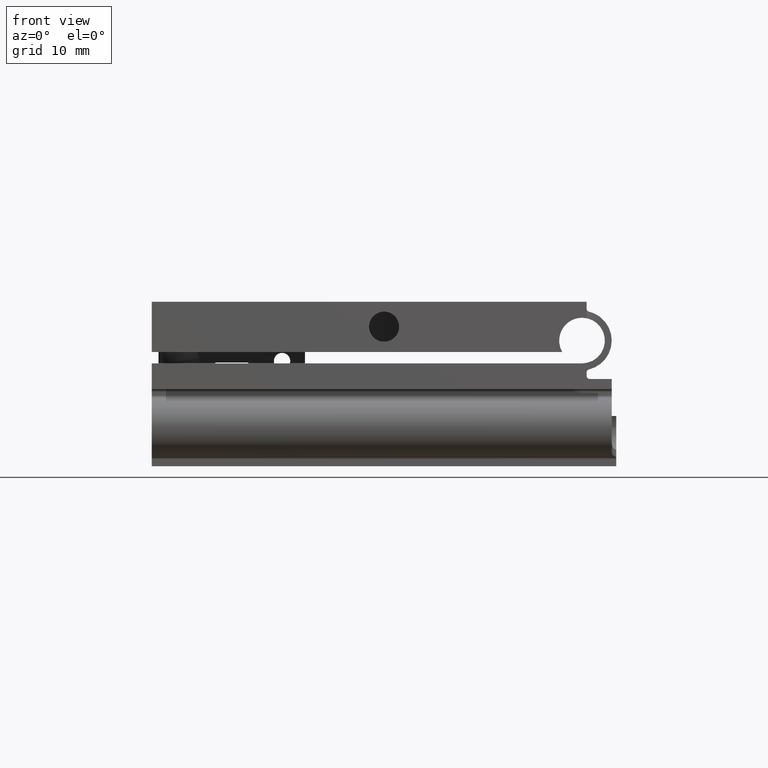
[diagram: clean part render]
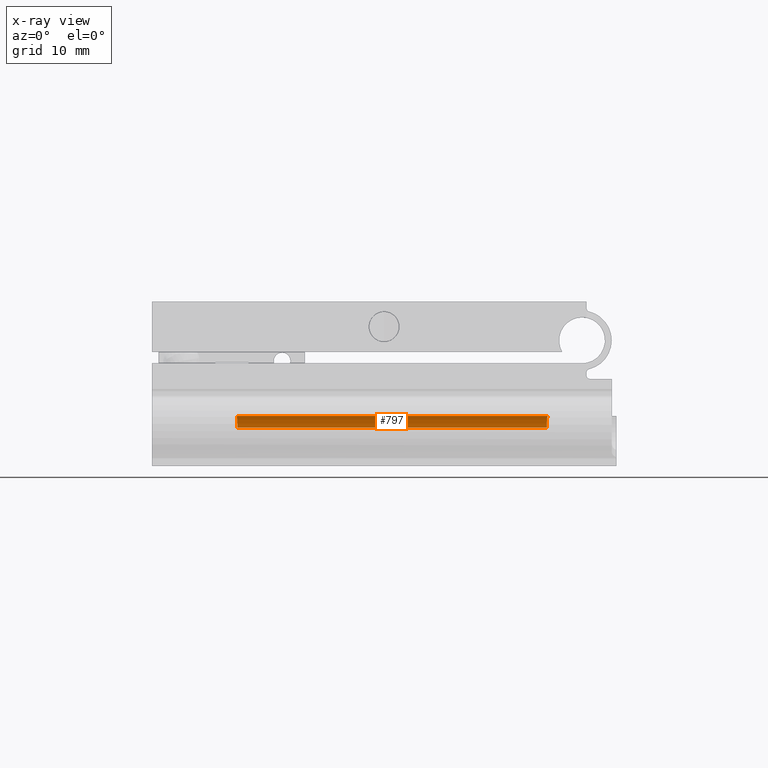
[diagram: x-ray — body ghosted, one internal face saturated and labeled with its STEP entity id]
A machine part, front view, then the same camera in x-ray: the body is ghosted and one INTERNAL B-rep face — a face not visible from any outside direction — is saturated and labeled: STEP entity #797.
In plain terms, the highlighted cylindrical surface (edge-blend (fillet) strip) has radius 2.5 mm, axis along (1, -0, 0).
Its self-contained STEP definition (entity closure, byte-faithful):
#267 = CARTESIAN_POINT ( 'NONE',  ( -16.05225204788961690, -19.17929865745773910, -4.310661376066158290 ) ) ;
#665 = CARTESIAN_POINT ( 'NONE',  ( 17.83786831304726661, -19.37651408174949097, -3.687793120702261618 ) ) ;
#682 = ORIENTED_EDGE ( 'NONE', *, *, #3242, .F. ) ;
#797 = ADVANCED_FACE ( 'NONE', ( #7647 ), #9318, .F. ) ;
#802 = VERTEX_POINT ( 'NONE', #4118 ) ;
#935 = CARTESIAN_POINT ( 'NONE',  ( -25.40000000000000213, -19.14999999999999503, -4.749999999999998224 ) ) ;
#1800 = EDGE_CURVE ( 'NONE', #10641, #802, #8908, .T. ) ;
#1941 = CARTESIAN_POINT ( 'NONE',  ( -16.05166712988701150, -19.14999999999999503, -4.530165283281665900 ) ) ;
#2614 = VECTOR ( 'NONE', #7169, 1000.000000000000000 ) ;
#2640 = EDGE_LOOP ( 'NONE', ( #6502, #5078, #682, #3213 ) ) ;
#2761 = CARTESIAN_POINT ( 'NONE',  ( -16.05927303029503506, -19.29241105560954139, -3.890257061786462689 ) ) ;
#2817 = CARTESIAN_POINT ( 'NONE',  ( -16.08169572833281435, -19.48493649053889598, -3.499999999999998224 ) ) ;
#3160 = CARTESIAN_POINT ( 'NONE',  ( 17.87810826046187884, -19.48493649053889598, -3.499999999999999556 ) ) ;
#3213 = ORIENTED_EDGE ( 'NONE', *, *, #4787, .T. ) ;
#3242 = EDGE_CURVE ( 'NONE', #4381, #8423, #5255, .T. ) ;
#3519 = CARTESIAN_POINT ( 'NONE',  ( -25.40000000000000213, -21.64999999999999147, -4.749999999999998224 ) ) ;
#3863 = CARTESIAN_POINT ( 'NONE',  ( -25.40000000000000213, -19.48493649053889598, -3.499999999999998224 ) ) ;
#4118 = CARTESIAN_POINT ( 'NONE',  ( -16.05166712988701860, -19.14999999999999503, -4.749999999999998224 ) ) ;
#4381 = VERTEX_POINT ( 'NONE', #10154 ) ;
#4393 = CARTESIAN_POINT ( 'NONE',  ( -16.06562591338839141, -19.37526507555749333, -3.689956462885763067 ) ) ;
#4433 = EDGE_CURVE ( 'NONE', #802, #8423, #9334, .T. ) ;
#4787 = EDGE_CURVE ( 'NONE', #4381, #10641, #8250, .T. ) ;
#5078 = ORIENTED_EDGE ( 'NONE', *, *, #4433, .T. ) ;
#5255 = B_SPLINE_CURVE_WITH_KNOTS ( 'NONE', 3,
 ( #3160, #665, #5710, #10693, #6575, #5765 ),
 .UNSPECIFIED., .F., .F.,
 ( 4, 2, 4 ),
 ( -0.001302205652526645637, -0.0006511028262633231437, -6.505213034913026604E-19 ),
 .UNSPECIFIED. ) ;
#5710 = CARTESIAN_POINT ( 'NONE',  ( 17.82241645588338841, -19.29261574950231406, -3.889168498510625405 ) ) ;
#5765 = CARTESIAN_POINT ( 'NONE',  ( 17.80400642056229898, -19.14999999999999858, -4.749999999999998224 ) ) ;
#5978 = VECTOR ( 'NONE', #10049, 1000.000000000000000 ) ;
#6041 = CARTESIAN_POINT ( 'NONE',  ( -16.08169572833281435, -19.48493649053889598, -3.499999999999998224 ) ) ;
#6072 = CARTESIAN_POINT ( 'NONE',  ( -16.05166712988701860, -19.14999999999999503, -4.749999999999998224 ) ) ;
#6166 = CARTESIAN_POINT ( 'NONE',  ( 17.80400642056229898, -19.14999999999999858, -4.749999999999998224 ) ) ;
#6502 = ORIENTED_EDGE ( 'NONE', *, *, #1800, .T. ) ;
#6575 = CARTESIAN_POINT ( 'NONE',  ( 17.80400642056229898, -19.14999999999999858, -4.529850744916507743 ) ) ;
#6669 = DIRECTION ( 'NONE',  ( 0.000000000000000000, 1.000000000000000000, 0.000000000000000000 ) ) ;
#6829 = DIRECTION ( 'NONE',  ( 1.000000000000000000, -5.551115123125782702E-17, 1.232595164407830946E-32 ) ) ;
#7169 = DIRECTION ( 'NONE',  ( -1.000000000000000000, -5.131708243377014121E-49, -9.244463733058732095E-33 ) ) ;
#7647 = FACE_OUTER_BOUND ( 'NONE', #2640, .T. ) ;
#8250 = LINE ( 'NONE', #3863, #2614 ) ;
#8423 = VERTEX_POINT ( 'NONE', #6166 ) ;
#8908 = B_SPLINE_CURVE_WITH_KNOTS ( 'NONE', 3,
 ( #2817, #4393, #2761, #267, #1941, #6072 ),
 .UNSPECIFIED., .F., .F.,
 ( 4, 2, 4 ),
 ( -0.001300586642736632640, -0.0006502933213683172956, -8.673617379884035472E-19 ),
 .UNSPECIFIED. ) ;
#9318 = CYLINDRICAL_SURFACE ( 'NONE', #10383, 2.499999999999998668 ) ;
#9334 = LINE ( 'NONE', #935, #5978 ) ;
#10049 = DIRECTION ( 'NONE',  ( 1.000000000000000000, -5.551115123125782702E-17, 1.232595164407830946E-32 ) ) ;
#10154 = CARTESIAN_POINT ( 'NONE',  ( 17.87810826046187884, -19.48493649053889598, -3.499999999999999556 ) ) ;
#10383 = AXIS2_PLACEMENT_3D ( 'NONE', #3519, #6829, #6669 ) ;
#10641 = VERTEX_POINT ( 'NONE', #6041 ) ;
#10693 = CARTESIAN_POINT ( 'NONE',  ( 17.80529584632525797, -19.17858977221112937, -4.313625316463534531 ) ) ;